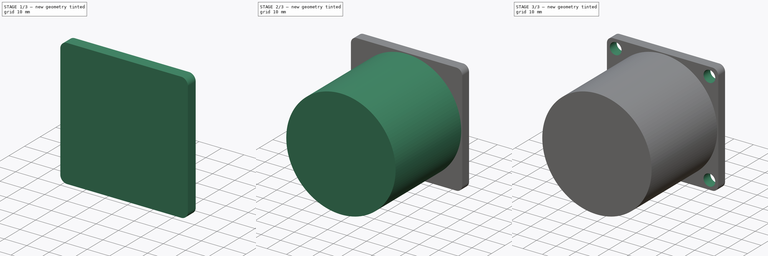
[diagram: build sequence overview — one tinted view per stage of 3, left to right]
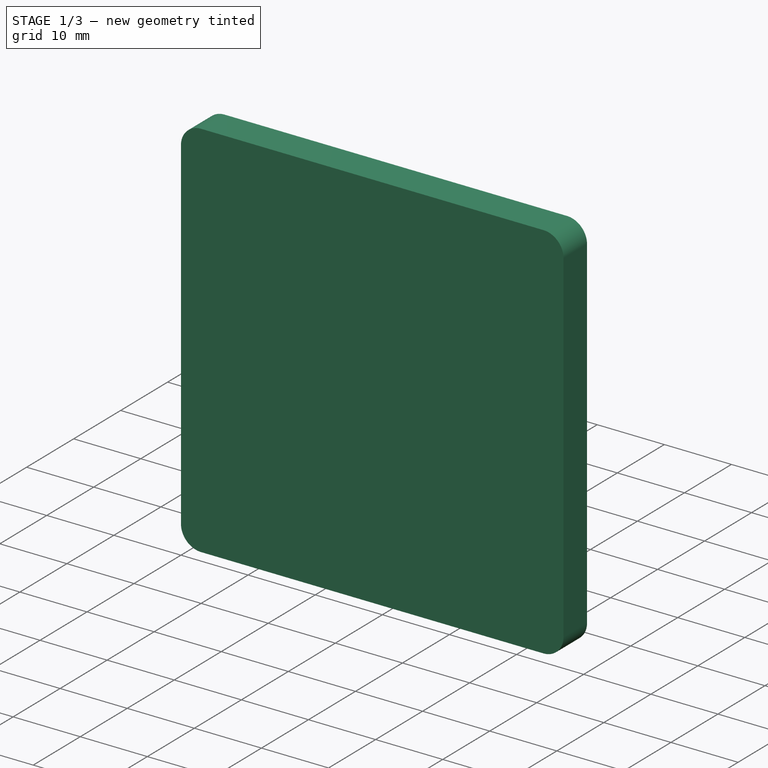
[diagram: stage 1 of 3 — iso view after this stage's code; geometry added in this stage tinted green]
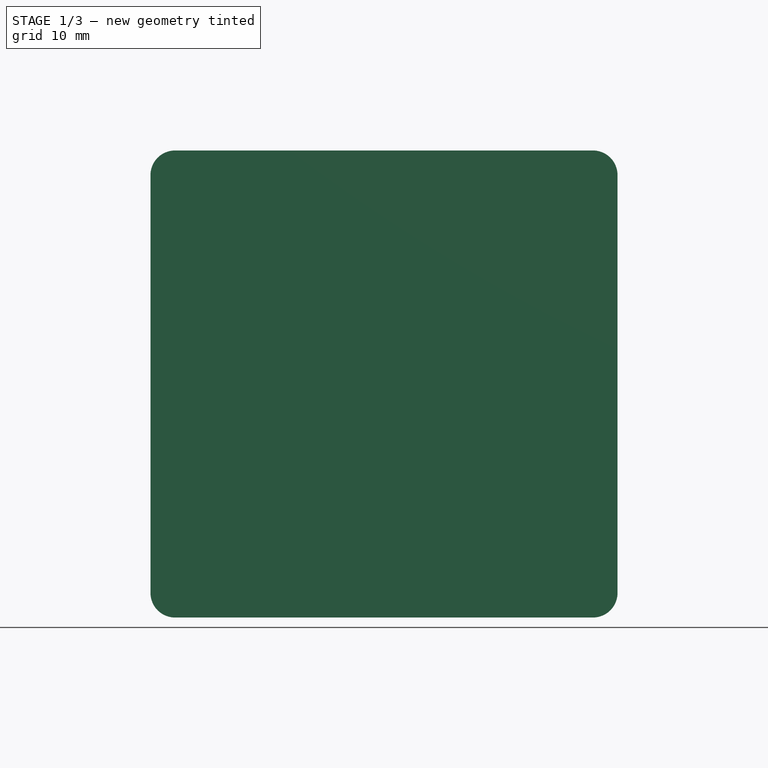
[diagram: stage 1 of 3 — front view after this stage's code; geometry added in this stage tinted green]
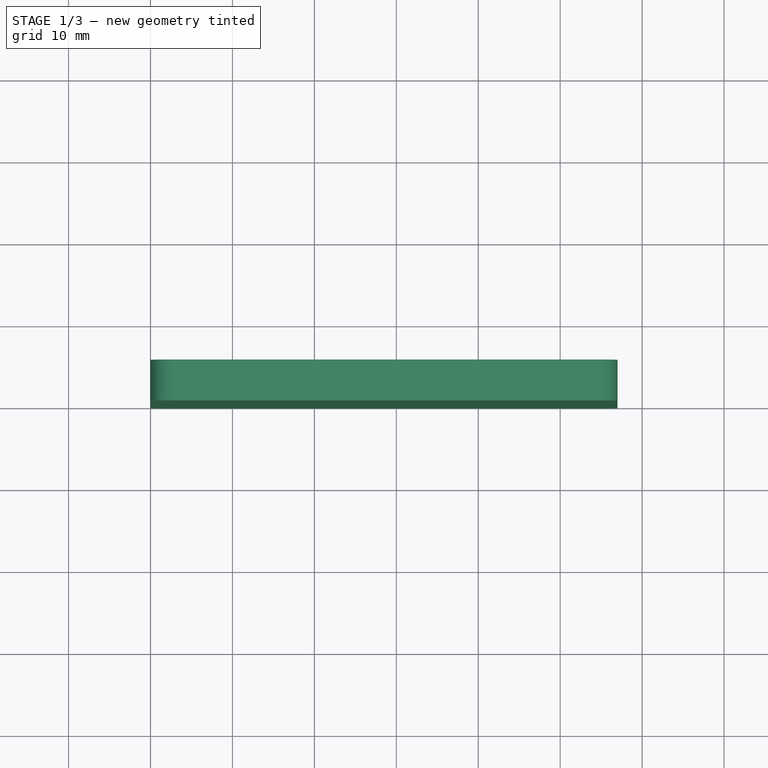
[diagram: stage 1 of 3 — top view after this stage's code; geometry added in this stage tinted green]
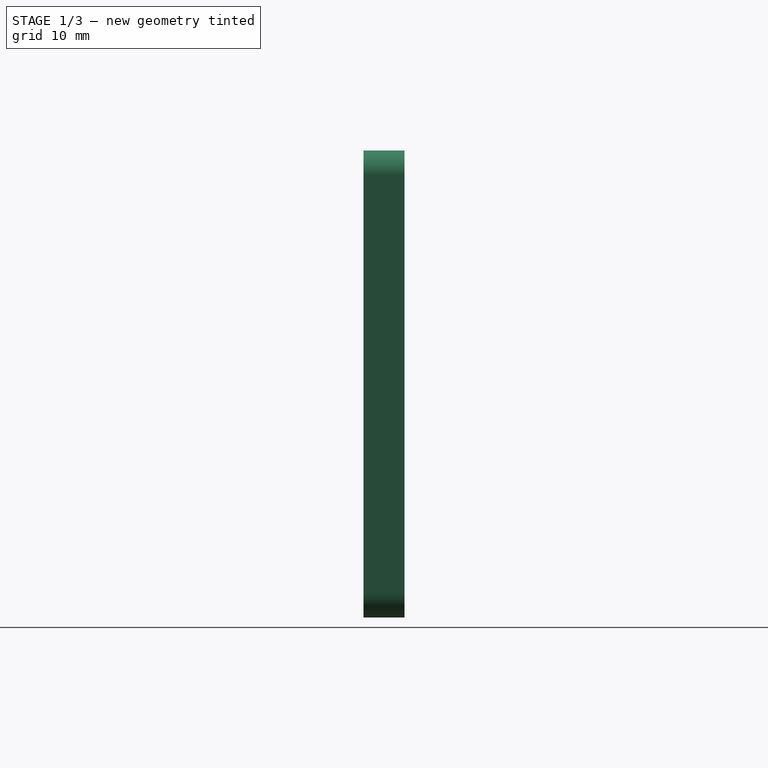
[diagram: stage 1 of 3 — right view after this stage's code; geometry added in this stage tinted green]
FCSTD DOCUMENT  (FreeCAD 0.14R3347 (Git))
Label: A_M
License: CC-BY 3.0
LicenseURL: http://creativecommons.org/licenses/by/3.0/
objects: Sketcher::SketchObject×5, PartDesign::Pad×4, Part::Fillet×1, PartDesign::Pocket×1
note: 16 computed .brp shape members not serialized (recipe doc carries the construction recipe); baked Part::Feature solids carry a one-line shape summary decoded from their .brp

FEATURE [Sketcher::SketchObject] Sketch
  Placement = pos=(0,0,0) rot=(-1,0,0;4.71239rad)
  sketch-geometry (4):
    g0: LineSegment StartX=0 StartY=0 StartZ=0 EndX=57 EndY=0 EndZ=0
    g1: LineSegment StartX=57 StartY=0 StartZ=0 EndX=57 EndY=57 EndZ=0
    g2: LineSegment StartX=57 StartY=57 StartZ=0 EndX=0 EndY=57 EndZ=0
    g3: LineSegment StartX=0 StartY=57 StartZ=0 EndX=0 EndY=0 EndZ=0
  constraints (11):
    c: Coincident(g0,g1)
    c: Coincident(g1,g2)
    c: Coincident(g2,g3)
    c: Coincident(g3,g0)
    c: Horizontal(g0)
    c: Horizontal(g2)
    c: Vertical(g1)
    c: Vertical(g3)
    c: Coincident(g0,g-1)
    c: DistanceX(g2) = -57
    c: DistanceY(g1) = 57
FEATURE [PartDesign::Pad] Pad
  Length = 5
  Length2 = 100
  Placement = pos=(0,0,0) rot=(-1,0,0;4.71239rad)
  Reversed = true
  Sketch = -> Sketch
  Type = 0
FEATURE [Part::Fillet] Fillet
  Base = -> Pad
  Edges = 4 edges r=3: [Edge1,Edge2,Edge5,Edge8]
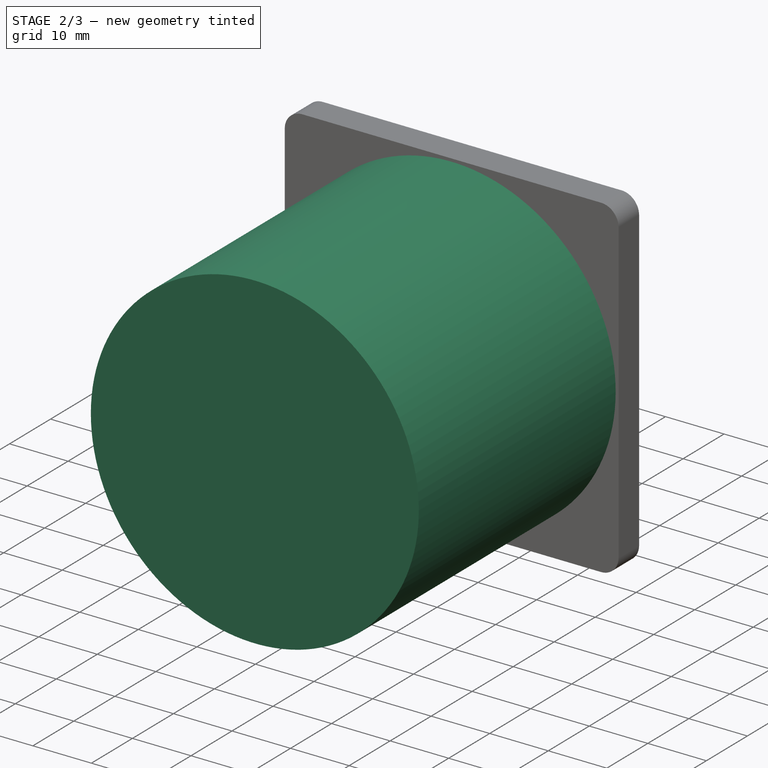
[diagram: stage 2 of 3 — iso view after this stage's code; geometry added in this stage tinted green]
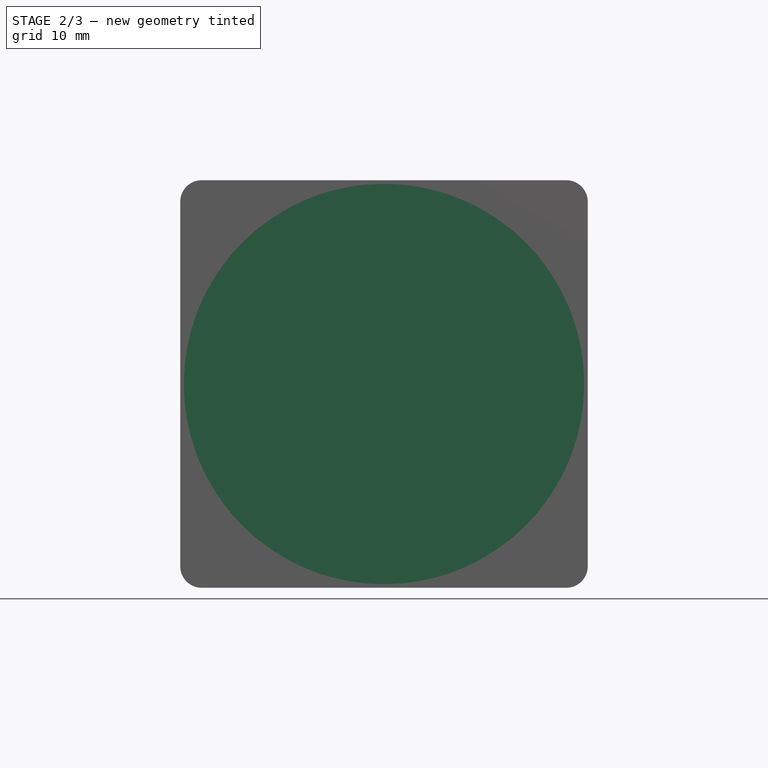
[diagram: stage 2 of 3 — front view after this stage's code; geometry added in this stage tinted green]
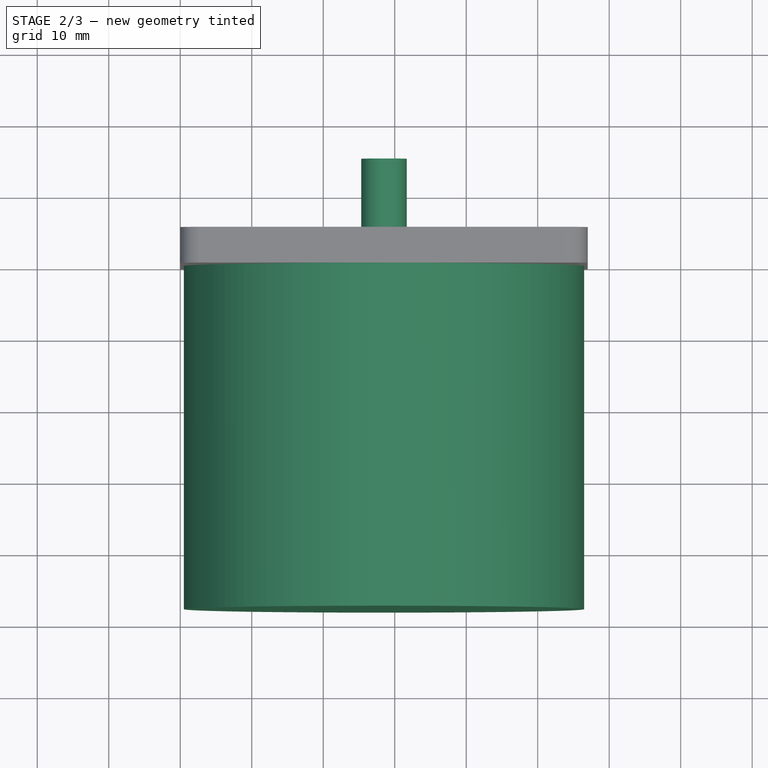
[diagram: stage 2 of 3 — top view after this stage's code; geometry added in this stage tinted green]
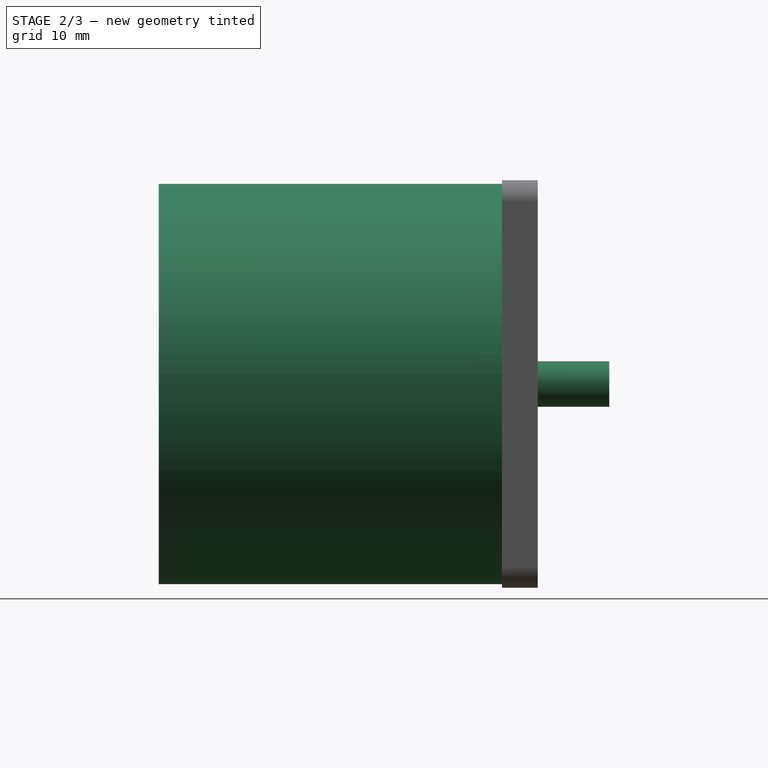
[diagram: stage 2 of 3 — right view after this stage's code; geometry added in this stage tinted green]
FEATURE [Sketcher::SketchObject] Sketch001
  Placement = pos=(0,0,0) rot=(1,0,0;1.5708rad)
  Support = -> Fillet [Face2]
  sketch-geometry (1):
    g0: Circle CenterX=28.5 CenterY=28.5 CenterZ=0 NormalX=0 NormalY=0 NormalZ=1 Radius=28
  constraints (3):
    c: Radius(g0) = 28
    c: DistanceX(g0) = 28.5
    c: DistanceY(g0) = 28.5
FEATURE [PartDesign::Pad] Pad001
  Length = 48
  Length2 = 100
  Sketch = -> Sketch001
  Type = 0
FEATURE [Sketcher::SketchObject] Sketch002
  Placement = pos=(0,5,0) rot=(0,0.707107,0.707107;3.14159rad)
  Support = -> Pad001 [Face12]
  sketch-geometry (1):
    g0: Circle CenterX=-28.5 CenterY=28.5 CenterZ=0 NormalX=0 NormalY=0 NormalZ=1 Radius=3.175
  constraints (3):
    c: Radius(g0) = 3.175
    c: DistanceX(g0) = -28.5
    c: DistanceY(g0) = 28.5
FEATURE [PartDesign::Pad] Pad002
  Length = 10
  Length2 = 100
  Sketch = -> Sketch002
  Type = 0
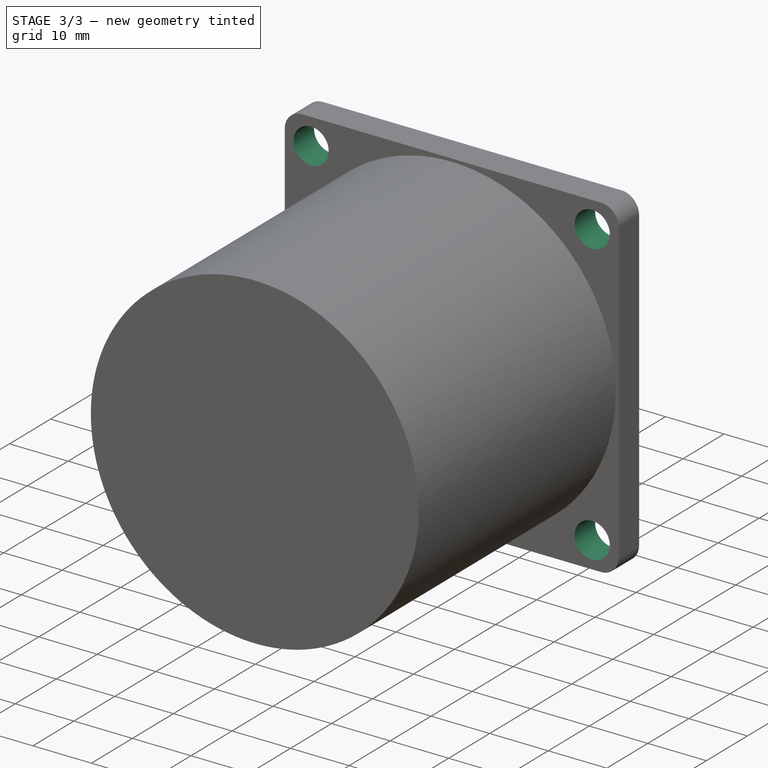
[diagram: stage 3 of 3 — iso view after this stage's code; geometry added in this stage tinted green]
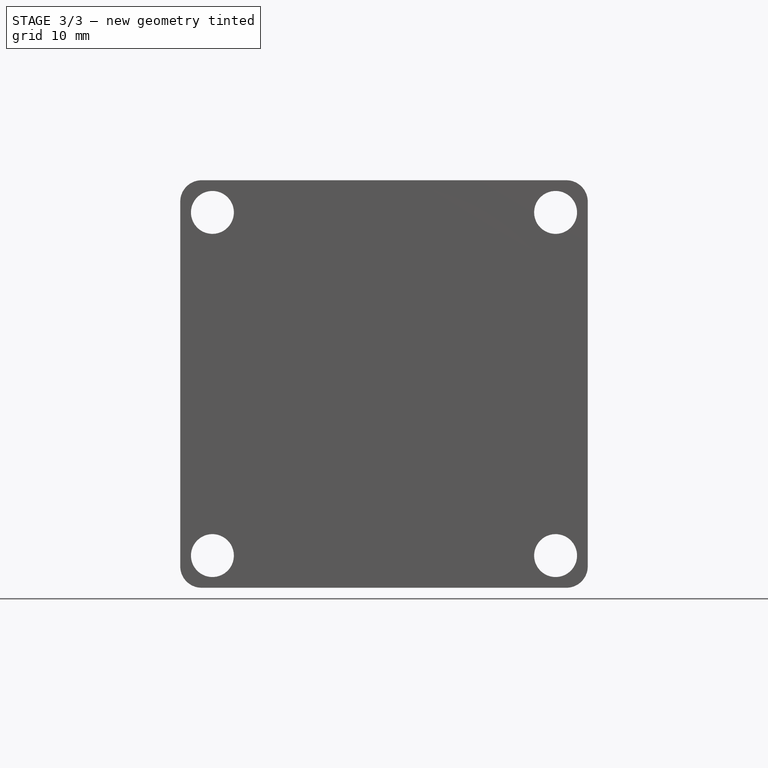
[diagram: stage 3 of 3 — front view after this stage's code; geometry added in this stage tinted green]
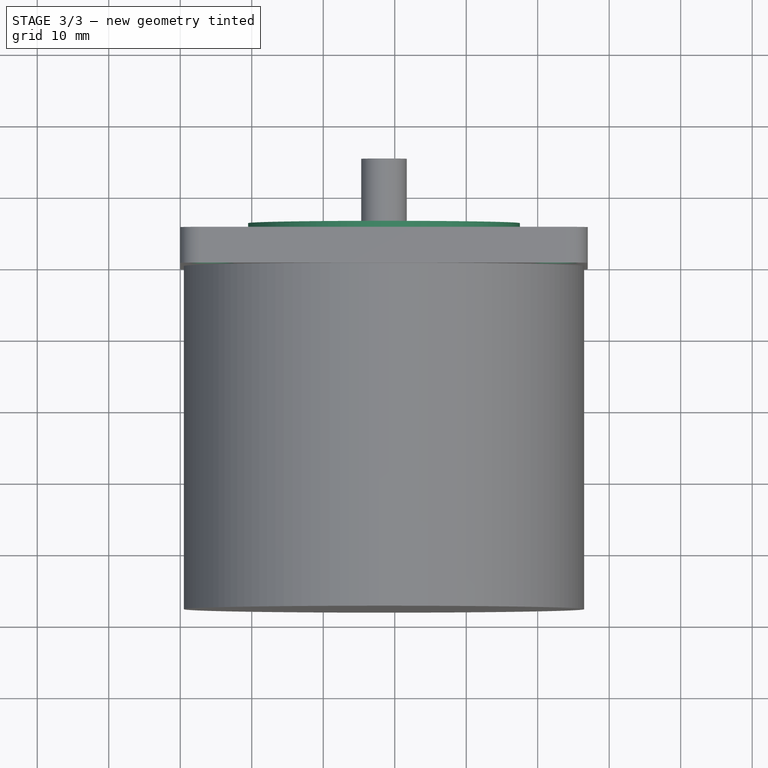
[diagram: stage 3 of 3 — top view after this stage's code; geometry added in this stage tinted green]
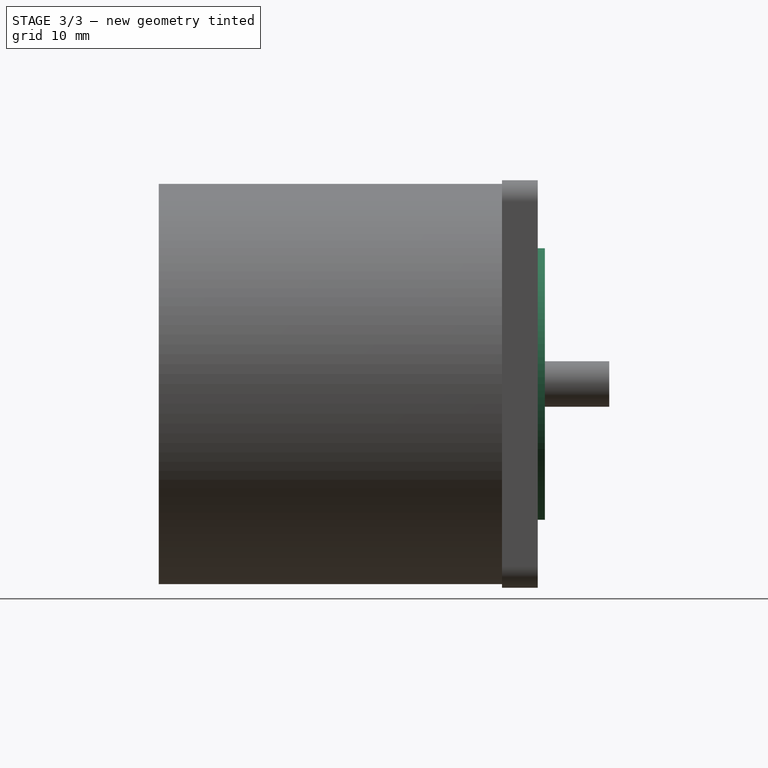
[diagram: stage 3 of 3 — right view after this stage's code; geometry added in this stage tinted green]
FEATURE [Sketcher::SketchObject] Sketch003
  Placement = pos=(0,5,0) rot=(0,0.707107,0.707107;3.14159rad)
  Support = -> Pad002 [Face12]
  sketch-geometry (1):
    g0: Circle CenterX=-28.5 CenterY=28.5 CenterZ=0 NormalX=0 NormalY=0 NormalZ=1 Radius=19
  constraints (3):
    c: Radius(g0) = 19
    c: DistanceX(g0) = -28.5
    c: DistanceY(g0) = 28.5
FEATURE [PartDesign::Pad] Pad003
  Length = 1
  Length2 = 100
  Sketch = -> Sketch003
  Type = 0
FEATURE [Sketcher::SketchObject] Sketch004
  Placement = pos=(0,5,0) rot=(0,0.707107,0.707107;3.14159rad)
  Support = -> Pad003 [Face12]
  sketch-geometry (9):
    g0: Circle CenterX=-52.5 CenterY=52.5 CenterZ=0 NormalX=0 NormalY=0 NormalZ=1 Radius=3
    g1: Circle CenterX=-4.5 CenterY=52.5 CenterZ=0 NormalX=0 NormalY=0 NormalZ=1 Radius=3
    g2: Circle CenterX=-52.5 CenterY=4.5 CenterZ=0 NormalX=0 NormalY=0 NormalZ=1 Radius=3
    g3: Circle CenterX=-4.5 CenterY=4.5 CenterZ=0 NormalX=0 NormalY=0 NormalZ=1 Radius=3
    g4: LineSegment [constr] StartX=-52.5 StartY=52.5 StartZ=0 EndX=-4.5 EndY=52.5 EndZ=0
    g5: LineSegment [constr] StartX=-4.5 StartY=52.5 StartZ=0 EndX=-4.5 EndY=4.5 EndZ=0
    g6: LineSegment [constr] StartX=-4.5 StartY=4.5 StartZ=0 EndX=-52.5 EndY=4.5 EndZ=0
    g7: LineSegment [constr] StartX=-52.5 StartY=4.5 StartZ=0 EndX=-52.5 EndY=52.5 EndZ=0
    g8: GeomPoint [constr] X=-28.5 Y=28.5 Z=0
  constraints (22):
    c: Equal(g0,g1)
    c: Equal(g1,g3)
    c: Equal(g3,g2)
    c: Radius(g1) = 3
    c: Coincident(g4,g5)
    c: Coincident(g5,g6)
    c: Coincident(g6,g7)
    c: Coincident(g7,g4)
    c: Horizontal(g4)
    c: Horizontal(g6)
    c: Vertical(g5)
    c: Vertical(g7)
    c: DistanceX(g4) = 48
    c: DistanceY(g5) = -48
    c: Coincident(g0,g4)
    c: Coincident(g1,g4)
    c: Coincident(g3,g5)
    c: Coincident(g2,g6)
    c: DistanceX(g8) = -28.5
    c: DistanceY(g8) = 28.5
    c: DistanceX(g8,g1) = 24
    c: DistanceY(g8,g2) = -24
FEATURE [PartDesign::Pocket] Pocket
  Length = 5
  Sketch = -> Sketch004
  Type = 1
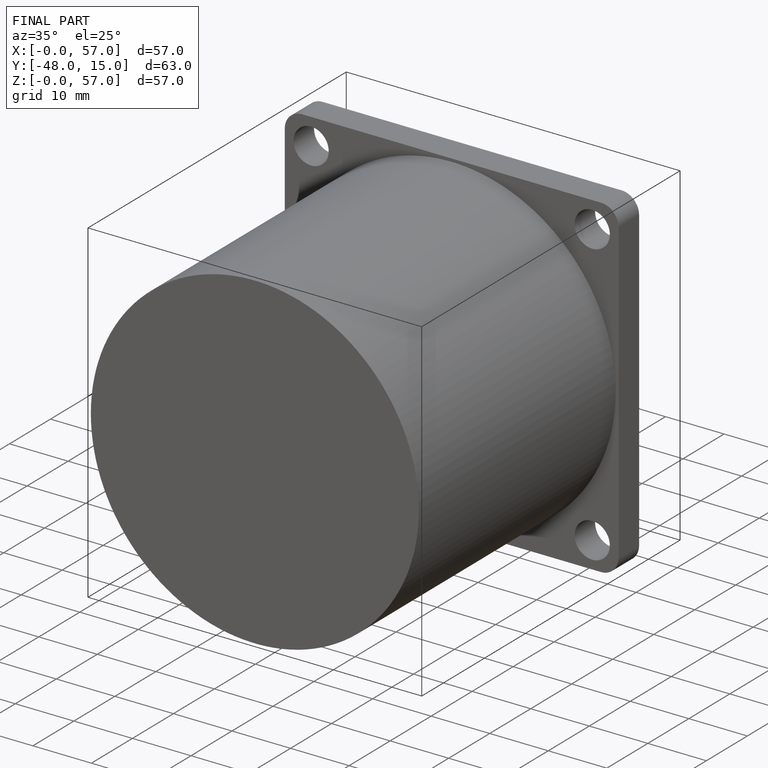
[diagram: finished part — iso view with bounding-box wireframe]
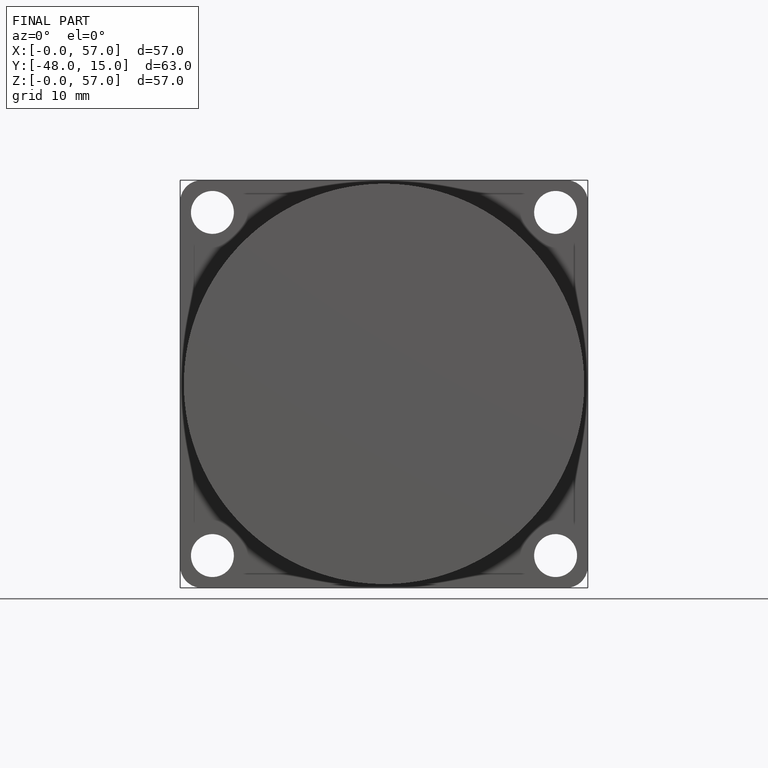
[diagram: finished part — front view with bounding-box wireframe]
